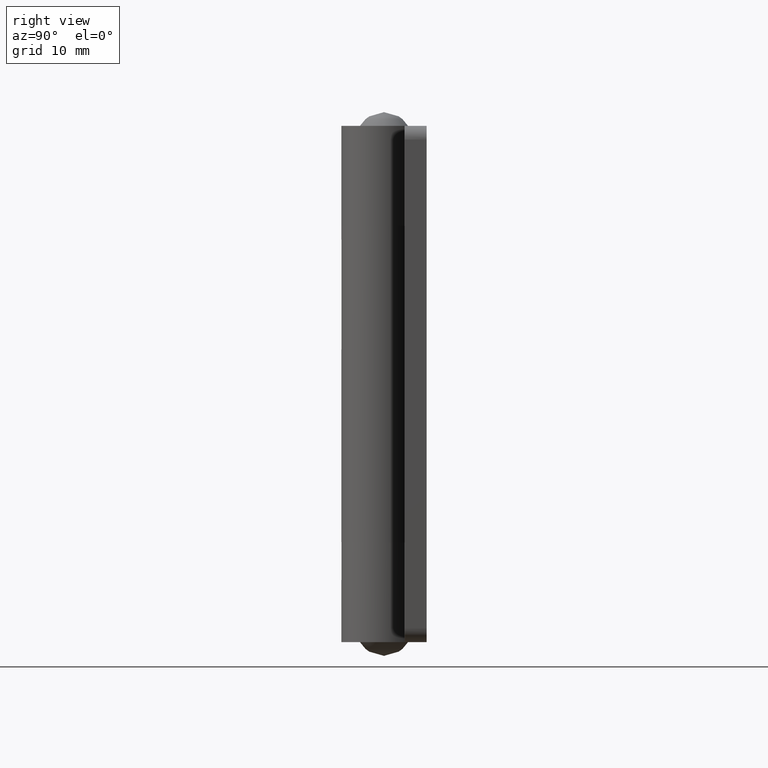
[diagram: clean part render]
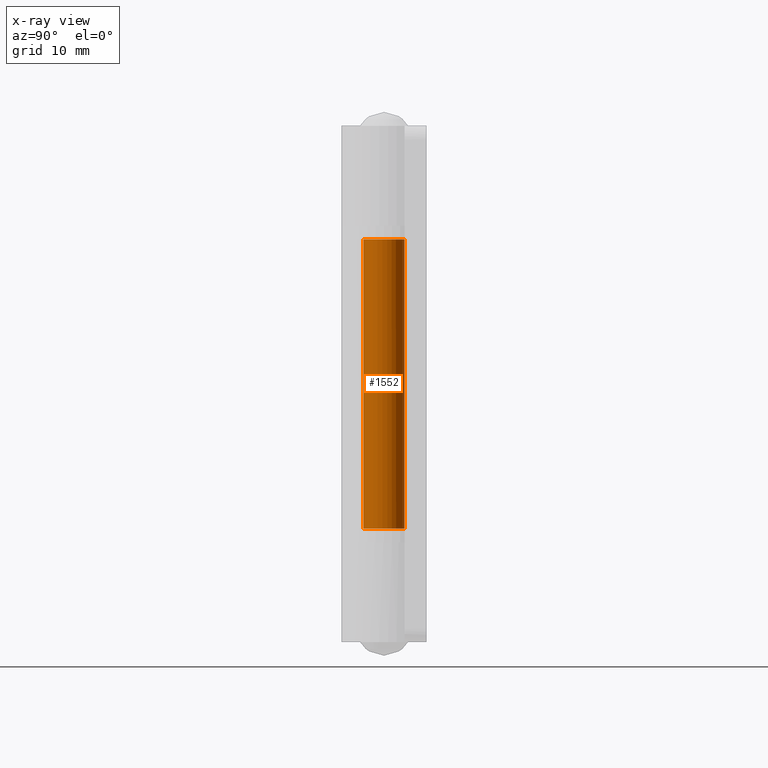
[diagram: x-ray — body ghosted, one internal face saturated and labeled with its STEP entity id]
A machine part, right view, then the same camera in x-ray: the body is ghosted and one INTERNAL B-rep face — a face not visible from any outside direction — is saturated and labeled: STEP entity #1552.
In plain terms, the highlighted face is a freeform B-spline surface patch.
Its self-contained STEP definition (entity closure, byte-faithful):
#1252=CARTESIAN_POINT('',(0.0,3.0,16.500000000000000));
#1253=VERTEX_POINT('',#1252);
#1288=CARTESIAN_POINT('',(-2.638650030874090,1.427419354838710,16.500000000000000));
#1289=VERTEX_POINT('',#1288);
#1295=CARTESIAN_POINT('',(-2.638650030874091,1.427419354838712,16.500000000000000));
#1296=CARTESIAN_POINT('',(-3.726110601328433,-0.582801298311906,16.500000000000000));
#1297=CARTESIAN_POINT('',(-2.076765961900384,-2.164957999475272,16.500000000000000));
#1298=CARTESIAN_POINT('',(-0.427421322472334,-3.747114700638639,16.500000000000000));
#1299=CARTESIAN_POINT('',(1.535861636913278,-2.577038810778384,16.500000000000000));
#1300=CARTESIAN_POINT('',(3.499144596298891,-1.406962920918129,16.500000000000000));
#1301=CARTESIAN_POINT('',(2.892327473881125,0.796518539540937,16.500000000000000));
#1302=CARTESIAN_POINT('',(2.285510351463362,3.000000000000000,16.500000000000000));
#1303=CARTESIAN_POINT('',(0.0,3.0,16.500000000000000));
#1311=(BOUNDED_CURVE()B_SPLINE_CURVE(2,(#1295,#1296,#1297,#1298,#1299,#1300,#1301,#1302,#1303),.UNSPECIFIED.,.F.,.U.)B_SPLINE_CURVE_WITH_KNOTS((3,2,2,2,3),(0.0,0.250000000000000,0.500000000000000,0.750000000000000,1.0),.UNSPECIFIED.)CURVE()GEOMETRIC_REPRESENTATION_ITEM()RATIONAL_B_SPLINE_CURVE((1.0,0.795457786386864,1.0,0.795457786386864,1.0,0.795457786386864,1.0,0.795457786386864,1.0))REPRESENTATION_ITEM(''));
#1312=EDGE_CURVE('',#1289,#1253,#1311,.T.);
#1350=CARTESIAN_POINT('',(0.0,3.0,58.500000000000000));
#1351=VERTEX_POINT('',#1350);
#1357=CARTESIAN_POINT('',(-2.638650030874090,1.427419354838710,58.500000000000000));
#1358=VERTEX_POINT('',#1357);
#1359=CARTESIAN_POINT('',(0.0,3.0,58.500000000000000));
#1360=CARTESIAN_POINT('',(2.285510351463362,3.000000000000000,58.500000000000014));
#1361=CARTESIAN_POINT('',(2.892327473881126,0.796518539540937,58.500000000000000));
#1362=CARTESIAN_POINT('',(3.499144596298890,-1.406962920918128,58.500000000000014));
#1363=CARTESIAN_POINT('',(1.535861636913280,-2.577038810778383,58.500000000000000));
#1364=CARTESIAN_POINT('',(-0.427421322472332,-3.747114700638639,58.500000000000014));
#1365=CARTESIAN_POINT('',(-2.076765961900383,-2.164957999475274,58.500000000000000));
#1366=CARTESIAN_POINT('',(-3.726110601328431,-0.582801298311910,58.500000000000014));
#1367=CARTESIAN_POINT('',(-2.638650030874092,1.427419354838708,58.500000000000000));
#1375=(BOUNDED_CURVE()B_SPLINE_CURVE(2,(#1359,#1360,#1361,#1362,#1363,#1364,#1365,#1366,#1367),.UNSPECIFIED.,.F.,.U.)B_SPLINE_CURVE_WITH_KNOTS((3,2,2,2,3),(0.0,0.250000000000000,0.500000000000000,0.750000000000000,1.0),.UNSPECIFIED.)CURVE()GEOMETRIC_REPRESENTATION_ITEM()RATIONAL_B_SPLINE_CURVE((1.0,0.795457786386864,1.0,0.795457786386864,1.0,0.795457786386864,1.0,0.795457786386864,1.0))REPRESENTATION_ITEM(''));
#1376=EDGE_CURVE('',#1351,#1358,#1375,.T.);
#1512=CARTESIAN_POINT('',(-2.638650030874090,1.427419354838710,58.500000000000000));
#1513=CARTESIAN_POINT('',(-2.638650030874090,1.427419354838710,16.500000000000000));
#1514=QUASI_UNIFORM_CURVE('',1,(#1512,#1513),.UNSPECIFIED.,.F.,.U.);
#1515=EDGE_CURVE('',#1358,#1289,#1514,.T.);
#1520=CARTESIAN_POINT('',(-2.584887481324576,1.522615088882112,59.550000000000011));
#1521=CARTESIAN_POINT('',(-2.584887481324576,1.522615088882112,15.423750000000000));
#1522=CARTESIAN_POINT('',(-4.454017153952614,-1.650537421576552,59.550000000000004));
#1523=CARTESIAN_POINT('',(-4.454017153952614,-1.650537421576552,15.423749999999998));
#1524=CARTESIAN_POINT('',(-0.968449136630486,-2.839384840024272,59.550000000000011));
#1525=CARTESIAN_POINT('',(-0.968449136630486,-2.839384840024272,15.423750000000000));
#1526=CARTESIAN_POINT('',(2.517118880691642,-4.028232258471992,59.550000000000004));
#1527=CARTESIAN_POINT('',(2.517118880691642,-4.028232258471992,15.423749999999998));
#1528=CARTESIAN_POINT('',(2.976562347997527,-0.374268070349911,59.550000000000011));
#1529=CARTESIAN_POINT('',(2.976562347997527,-0.374268070349911,15.423750000000000));
#1530=CARTESIAN_POINT('',(3.436005815303412,3.279696117772171,59.550000000000004));
#1531=CARTESIAN_POINT('',(3.436005815303412,3.279696117772171,15.423749999999998));
#1532=CARTESIAN_POINT('',(-0.235377287183536,2.990752001199384,59.550000000000011));
#1533=CARTESIAN_POINT('',(-0.235377287183536,2.990752001199384,15.423750000000000));
#1541=(BOUNDED_SURFACE()B_SPLINE_SURFACE(1,2,((#1520,#1522,#1524,#1526,#1528,#1530,#1532),(#1521,#1523,#1525,#1527,#1529,#1531,#1533)),.UNSPECIFIED.,.F.,.F.,.U.)B_SPLINE_SURFACE_WITH_KNOTS((2,2),(3,2,2,3),(0.0,44.126250000000013),(0.0,5.702297214197750,11.404594428395500,17.106891642593251),.UNSPECIFIED.)GEOMETRIC_REPRESENTATION_ITEM()RATIONAL_B_SPLINE_SURFACE(((1.0,0.631578351302498,1.0,0.631578351302498,1.0,0.631578351302498,1.0),(1.0,0.631578351302498,1.0,0.631578351302498,1.0,0.631578351302498,1.0)))REPRESENTATION_ITEM('')SURFACE());
#1542=ORIENTED_EDGE('',*,*,#1312,.F.);
#1543=ORIENTED_EDGE('',*,*,#1515,.F.);
#1544=ORIENTED_EDGE('',*,*,#1376,.F.);
#1545=CARTESIAN_POINT('',(0.0,3.0,58.500000000000000));
#1546=CARTESIAN_POINT('',(0.0,3.0,16.500000000000000));
#1547=QUASI_UNIFORM_CURVE('',1,(#1545,#1546),.UNSPECIFIED.,.F.,.U.);
#1548=EDGE_CURVE('',#1351,#1253,#1547,.T.);
#1549=ORIENTED_EDGE('',*,*,#1548,.T.);
#1550=EDGE_LOOP('',(#1542,#1543,#1544,#1549));
#1551=FACE_OUTER_BOUND('',#1550,.T.);
#1552=ADVANCED_FACE('',(#1551),#1541,.F.);